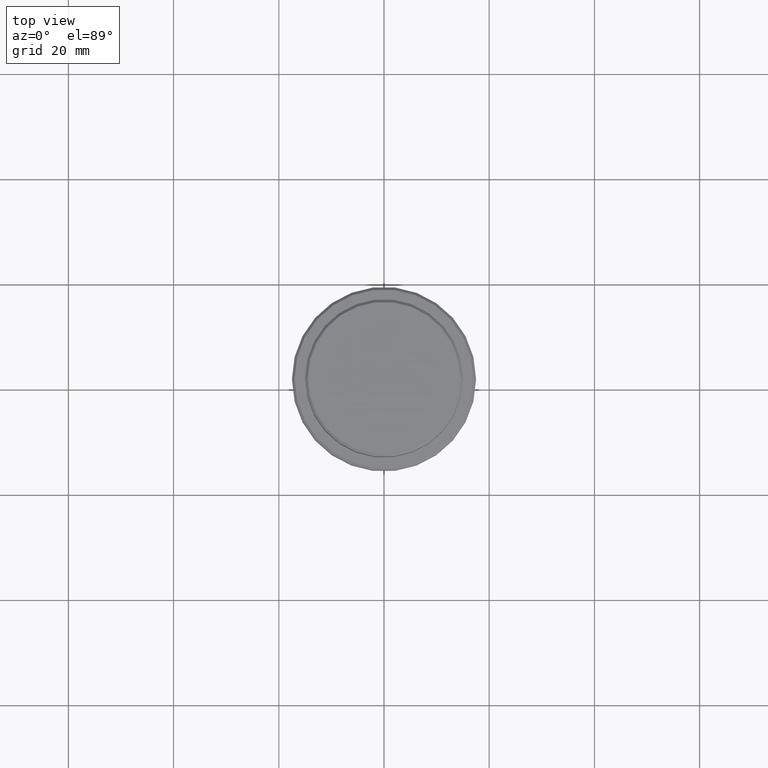
[diagram: clean part render]
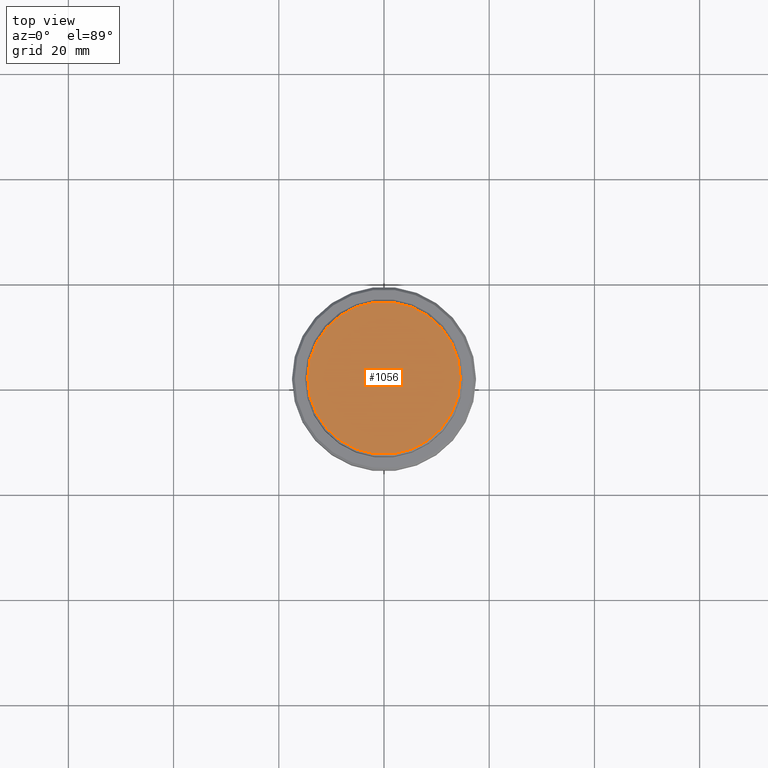
[diagram: same view with one face highlighted and labeled with its STEP entity id]
A machine part, top view. The second image highlights one B-rep face of the part: STEP entity #1056.
In plain terms, the highlighted planar face has unit normal (0, -0, 1).
Its self-contained STEP definition (entity closure, byte-faithful):
#49 = CIRCLE ( 'NONE', #1402, 14.49999999999996980 ) ;
#55 = AXIS2_PLACEMENT_3D ( 'NONE', #1104, #459, #586 ) ;
#86 = VERTEX_POINT ( 'NONE', #198 ) ;
#100 = ORIENTED_EDGE ( 'NONE', *, *, #701, .T. ) ;
#133 = DIRECTION ( 'NONE',  ( 1.000000000000000000, 0.000000000000000000, 0.000000000000000000 ) ) ;
#198 = CARTESIAN_POINT ( 'NONE',  ( -14.49999999999996980, 0.000000000000000000, 0.000000000000000000 ) ) ;
#228 = PLANE ( 'NONE',  #55 ) ;
#229 = CARTESIAN_POINT ( 'NONE',  ( 0.000000000000000000, 0.000000000000000000, 0.000000000000000000 ) ) ;
#243 = ORIENTED_EDGE ( 'NONE', *, *, #289, .T. ) ;
#289 = EDGE_CURVE ( 'NONE', #86, #1211, #49, .T. ) ;
#313 = AXIS2_PLACEMENT_3D ( 'NONE', #229, #441, #771 ) ;
#370 = CARTESIAN_POINT ( 'NONE',  ( 0.000000000000000000, 0.000000000000000000, 0.000000000000000000 ) ) ;
#441 = DIRECTION ( 'NONE',  ( -0.000000000000000000, -0.000000000000000000, 1.000000000000000000 ) ) ;
#459 = DIRECTION ( 'NONE',  ( 0.000000000000000000, -0.000000000000000000, 1.000000000000000000 ) ) ;
#577 = FACE_OUTER_BOUND ( 'NONE', #1236, .T. ) ;
#586 = DIRECTION ( 'NONE',  ( 1.000000000000000000, 0.000000000000000000, 0.000000000000000000 ) ) ;
#701 = EDGE_CURVE ( 'NONE', #1211, #86, #1415, .T. ) ;
#771 = DIRECTION ( 'NONE',  ( 1.000000000000000000, 0.000000000000000000, 0.000000000000000000 ) ) ;
#1056 = ADVANCED_FACE ( 'NONE', ( #577 ), #228, .T. ) ;
#1104 = CARTESIAN_POINT ( 'NONE',  ( 0.000000000000000000, 0.000000000000000000, 0.000000000000000000 ) ) ;
#1211 = VERTEX_POINT ( 'NONE', #1297 ) ;
#1221 = DIRECTION ( 'NONE',  ( -0.000000000000000000, -0.000000000000000000, 1.000000000000000000 ) ) ;
#1236 = EDGE_LOOP ( 'NONE', ( #243, #100 ) ) ;
#1297 = CARTESIAN_POINT ( 'NONE',  ( 14.49999999999996980, 1.806354028742344224E-15, 0.000000000000000000 ) ) ;
#1402 = AXIS2_PLACEMENT_3D ( 'NONE', #370, #1221, #133 ) ;
#1415 = CIRCLE ( 'NONE', #313, 14.49999999999996980 ) ;